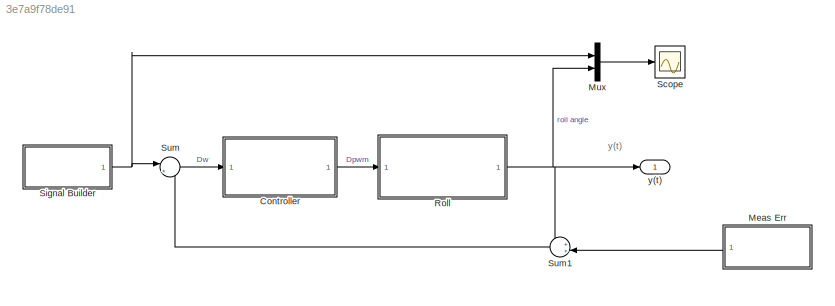
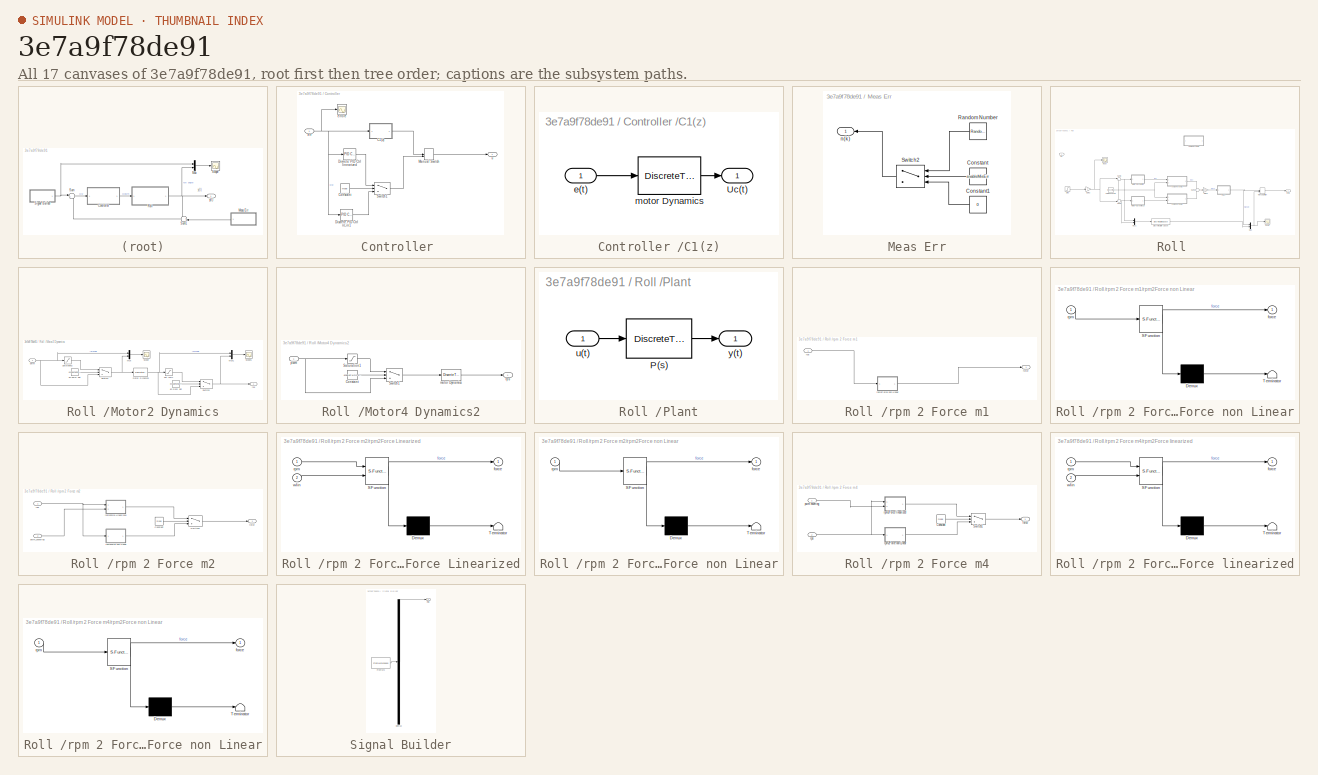
[diagram: thumbnail index - all 17 canvases of the model, root first then tree order]
MODEL slx_3e7a9f78de91
KIND model
CONFIG AbsTol = auto
CONFIG EnableMultiTasking = on
CONFIG FixedStep = 0.021
CONFIG MaxStep = auto
CONFIG MinStep = auto
CONFIG RelTol = 1e-3
CONFIG SampleTimeConstraint = Unconstrained
CONFIG Solver = ode3
CONFIG SolverName = ode3
CONFIG StartTime = 0.0
CONFIG StopTime = 10
BLOCK [SubSystem] Controller 
  Ports = [1, 1]
  RequestExecContextInheritance = off
  Variant = off
BLOCK [SubSystem] Controller /C1(z)
  Ports = [1, 1]
  RequestExecContextInheritance = off
  Variant = off
BLOCK [Outport] Controller /C1(z)/Uc(t)
  IconDisplay = Port number
BLOCK [Inport] Controller /C1(z)/e(t)
  IconDisplay = Port number
BLOCK [DiscreteTransferFcn] Controller /C1(z)/motor Dynamics
  Denominator = [1]
  InputPortMap = u0
  Ports = [1, 1]
  SampleTime = Ts
BLOCK [Constant] Controller /Constant
  Value = mode
BLOCK [Reference] Controller /Discrete PID Ctrl linearized   REF=simulink/Continuous/PID Controller
  Ports = [1, 1]
  SourceBlock = simulink/Continuous/PID Controller
  SourceProductBaseCode = SL
  SourceProductName = Simulink
  SourceType = PID 1dof
BLOCK [Reference] Controller /Discrete PID Ctrl nLin1  REF=simulink/Continuous/PID Controller
  Ports = [1, 1]
  SourceBlock = simulink/Continuous/PID Controller
  SourceProductBaseCode = SL
  SourceProductName = Simulink
  SourceType = PID 1dof
BLOCK [ManualSwitch] Controller /Manual Switch
  CurrentSetting = 0
BLOCK [Switch] Controller /Switch1
  Criteria = u2 > Threshold
  InputSameDT = off
  SaturateOnIntegerOverflow = off
BLOCK [Inport] Controller /err 
  IconDisplay = Port number
BLOCK [Scope] Controller /errore
  NumInputPorts = 1
  Ports = [1]
  ScopeSpecificationString = C++SS(StrPVP('Location','[1567, 635, 2421, 1052]'),StrPVP('Open','off'),MxPVP('AxesTitles',53,'struct(''axes1'',''%<SignalLabel>'')'),MxPVP('ScopeGraphics',56,'struct(''FigureColor'',''[0.5 0.5 0.5]'',''AxesColor'',''[0 0 0]'',''AxesTickColor'',''[1 1 1]'',''LineColors'',''[1 1 0;1 0 1;0 1 1;1 0 0;0 1 0;0 0 1]'',''LineStyles'',''-|-|-|-|-|-'',''LineWidths'',''[0.5 0.5 0.5 0.5 0.5 0.5]'',''MarkerSt...<+339ch>
BLOCK [Outport] Controller /u 
  IconDisplay = Port number
BLOCK [SubSystem] Meas Err
  Ports = [0, 1]
  RequestExecContextInheritance = off
  Variant = off
BLOCK [Constant] Meas Err/Constant
  Value = enableMisErr
BLOCK [Constant] Meas Err/Constant1
  Value = 0
BLOCK [RandomNumber] Meas Err/Random Number
  SampleTime = Ts
  Variance = 0.3
BLOCK [Switch] Meas Err/Switch2
  Criteria = u2 > Threshold
  InputSameDT = off
  SampleTime = Ts
  SaturateOnIntegerOverflow = off
BLOCK [Outport] Meas Err/n(k)
  IconDisplay = Port number
BLOCK [Mux] Mux
  DisplayOption = bar
  Inputs = 2
  Ports = [2, 1]
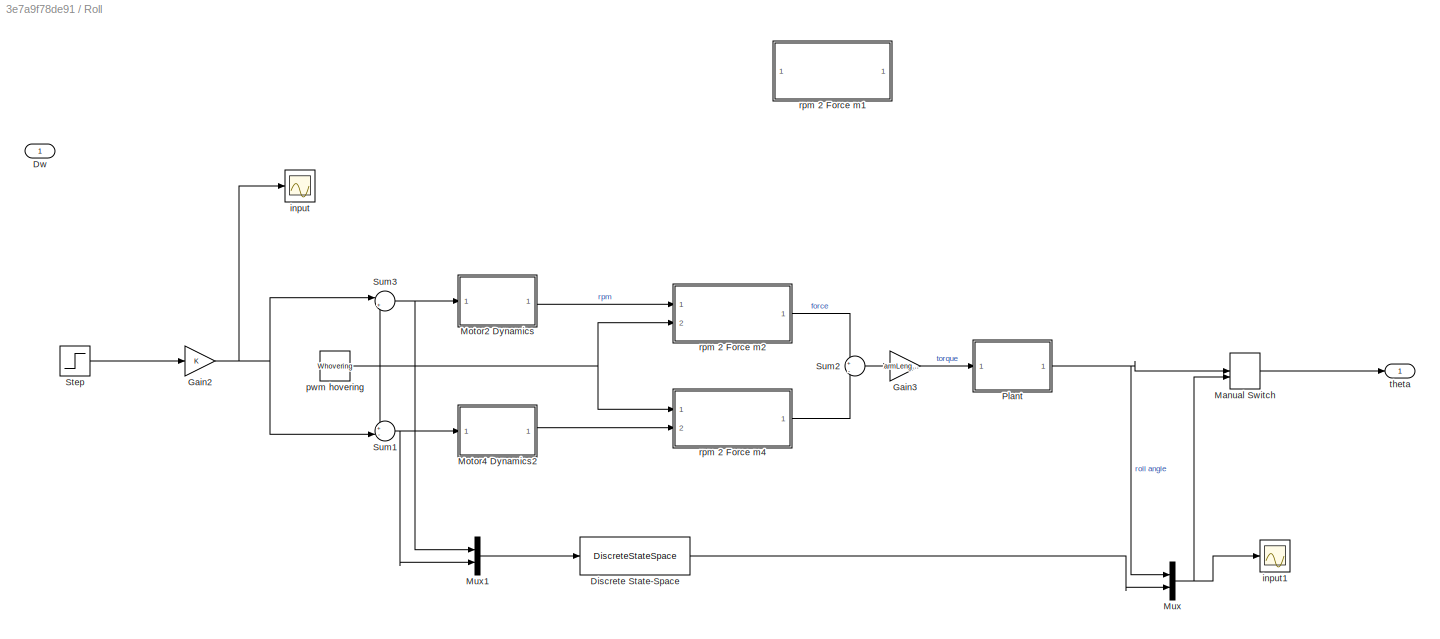
BLOCK [SubSystem] Roll 
  Ports = [1, 1]
  RequestExecContextInheritance = off
  Variant = off
BLOCK [DiscreteStateSpace] Roll /Discrete State-Space
  A = Acomplete
  B = Bcomplete
  C = Ccomplete
  D = Dcomplete
  SampleTime = Ts
BLOCK [Inport] Roll /Dw 
  IconDisplay = Port number
BLOCK [Gain] Roll /Gain2
  OutDataTypeStr = Inherit: Inherit via internal rule
  ParamDataTypeStr = Inherit: Inherit via internal rule
  SampleTime = Ts
  SaturateOnIntegerOverflow = off
BLOCK [Gain] Roll /Gain3
  Gain = armLength
  OutDataTypeStr = Inherit: Inherit via internal rule
  ParamDataTypeStr = Inherit: Inherit via internal rule
  SampleTime = Ts
  SaturateOnIntegerOverflow = off
BLOCK [ManualSwitch] Roll /Manual Switch
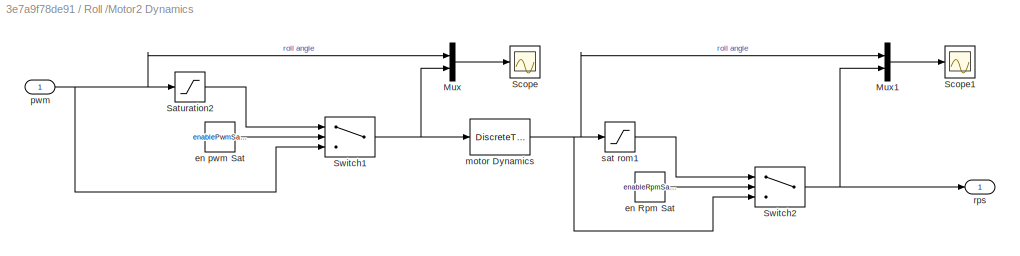
BLOCK [SubSystem] Roll /Motor2 Dynamics
  Ports = [1, 1]
  RequestExecContextInheritance = off
  Variant = off
BLOCK [Mux] Roll /Motor2 Dynamics/Mux
  DisplayOption = bar
  Inputs = 2
  Ports = [2, 1]
BLOCK [Mux] Roll /Motor2 Dynamics/Mux1
  DisplayOption = bar
  Inputs = 2
  Ports = [2, 1]
BLOCK [Saturate] Roll /Motor2 Dynamics/Saturation2
  InputPortMap = u0
  LowerLimit = pwmLowerBound
  Ports = [1, 1]
  SampleTime = Ts
  UpperLimit = pwmUpperBound
BLOCK [Scope] Roll /Motor2 Dynamics/Scope
  NumInputPorts = 1
  Ports = [1]
  ScopeSpecificationString = C++SS(StrPVP('Location','[1806, 178, 2650, 565]'),StrPVP('Open','off'),MxPVP('AxesTitles',53,'struct(''axes1'',''%<SignalLabel>'')'),MxPVP('ScopeGraphics',56,'struct(''FigureColor'',''[0.5 0.5 0.5]'',''AxesColor'',''[0 0 0]'',''AxesTickColor'',''[1 1 1]'',''LineColors'',''[1 1 0;1 0 1;0 1 1;1 0 0;0 1 0;0 0 1]'',''LineStyles'',''-|-|-|-|-|-'',''LineWidths'',''[0.5 0.5 0.5 0.5 0.5 0.5]'',''MarkerSty...<+338ch>
BLOCK [Scope] Roll /Motor2 Dynamics/Scope1
  NumInputPorts = 1
  Ports = [1]
  ScopeSpecificationString = C++SS(StrPVP('Location','[1806, 290, 2650, 677]'),StrPVP('Open','off'),MxPVP('AxesTitles',53,'struct(''axes1'',''%<SignalLabel>'')'),MxPVP('ScopeGraphics',56,'struct(''FigureColor'',''[0.5 0.5 0.5]'',''AxesColor'',''[0 0 0]'',''AxesTickColor'',''[1 1 1]'',''LineColors'',''[1 1 0;1 0 1;0 1 1;1 0 0;0 1 0;0 0 1]'',''LineStyles'',''-|-|-|-|-|-'',''LineWidths'',''[0.5 0.5 0.5 0.5 0.5 0.5]'',''MarkerSty...<+338ch>
BLOCK [Switch] Roll /Motor2 Dynamics/Switch1
  Criteria = u2 > Threshold
  InputSameDT = off
  SampleTime = Ts
  SaturateOnIntegerOverflow = off
BLOCK [Switch] Roll /Motor2 Dynamics/Switch2
  Criteria = u2 > Threshold
  InputSameDT = off
  SampleTime = Ts
  SaturateOnIntegerOverflow = off
BLOCK [Constant] Roll /Motor2 Dynamics/en Rpm Sat
  Value = enableRpmSaturation
BLOCK [Constant] Roll /Motor2 Dynamics/en pwm Sat
  Value = enablePwmSaturation
BLOCK [DiscreteTransferFcn] Roll /Motor2 Dynamics/motor Dynamics
  Denominator = motor_den_tf_discrete
  InputPortMap = u0
  Numerator = motor_num_tf_discrete
  Ports = [1, 1]
  SampleTime = Ts
BLOCK [Inport] Roll /Motor2 Dynamics/pwm
  IconDisplay = Port number
BLOCK [Outport] Roll /Motor2 Dynamics/rps
  IconDisplay = Port number
BLOCK [Saturate] Roll /Motor2 Dynamics/sat rom1
  InputPortMap = u0
  LowerLimit = rpmLowerBound
  Ports = [1, 1]
  SampleTime = Ts
  UpperLimit = rpmUpperBound
BLOCK [SubSystem] Roll /Motor4 Dynamics2
  Ports = [1, 1]
  RequestExecContextInheritance = off
  Variant = off
BLOCK [Constant] Roll /Motor4 Dynamics2/Constant
  SampleTime = Ts
  Value = enablePwmSaturation
BLOCK [Saturate] Roll /Motor4 Dynamics2/Saturation1
  InputPortMap = u0
  LowerLimit = pwmLowerBound
  Ports = [1, 1]
  SampleTime = Ts
  UpperLimit = pwmUpperBound
BLOCK [Switch] Roll /Motor4 Dynamics2/Switch1
  Criteria = u2 > Threshold
  InputSameDT = off
  SampleTime = Ts
  SaturateOnIntegerOverflow = off
BLOCK [DiscreteTransferFcn] Roll /Motor4 Dynamics2/motor Dynamics
  Denominator = motor_den_tf_discrete
  InitialStates = Whovering
  InputPortMap = u0
  Numerator = motor_num_tf_discrete
  Ports = [1, 1]
  SampleTime = Ts
BLOCK [Inport] Roll /Motor4 Dynamics2/pwm
  IconDisplay = Port number
BLOCK [Outport] Roll /Motor4 Dynamics2/rps
  IconDisplay = Port number
BLOCK [Mux] Roll /Mux
  DisplayOption = bar
  Inputs = 2
  Ports = [2, 1]
BLOCK [Mux] Roll /Mux1
  DisplayOption = bar
  Inputs = 2
  Ports = [2, 1]
BLOCK [SubSystem] Roll /Plant
  Ports = [1, 1]
  RequestExecContextInheritance = off
  Variant = off
BLOCK [DiscreteTransferFcn] Roll /Plant/P(s)
  Denominator = roll_den_tf_discrete
  InputPortMap = u0
  Numerator = motor_den_tf_discrete
  Ports = [1, 1]
  SampleTime = Ts
BLOCK [Inport] Roll /Plant/u(t)
  IconDisplay = Port number
BLOCK [Outport] Roll /Plant/y(t)
  IconDisplay = Port number
BLOCK [Step] Roll /Step
  After = 10
  SampleTime = 0
BLOCK [Sum] Roll /Sum1
  IconShape = round
  InputSameDT = off
  Inputs = +-|
  OutDataTypeStr = Inherit: Inherit via internal rule
  Ports = [2, 1]
  SaturateOnIntegerOverflow = off
BLOCK [Sum] Roll /Sum2
  IconShape = round
  InputSameDT = off
  Inputs = +|-
  OutDataTypeStr = Inherit: Inherit via internal rule
  Ports = [2, 1]
  SaturateOnIntegerOverflow = off
BLOCK [Sum] Roll /Sum3
  IconShape = round
  InputSameDT = off
  Inputs = |++
  OutDataTypeStr = Inherit: Inherit via internal rule
  Ports = [2, 1]
  SaturateOnIntegerOverflow = off
BLOCK [Scope] Roll /input
  NumInputPorts = 1
  Ports = [1]
  ScopeSpecificationString = C++SS(StrPVP('Location','[1565, 596, 2409, 983]'),StrPVP('Open','off'),MxPVP('AxesTitles',53,'struct(''axes1'',''%<SignalLabel>'')'),MxPVP('ScopeGraphics',56,'struct(''FigureColor'',''[0.5 0.5 0.5]'',''AxesColor'',''[0 0 0]'',''AxesTickColor'',''[1 1 1]'',''LineColors'',''[1 1 0;1 0 1;0 1 1;1 0 0;0 1 0;0 0 1]'',''LineStyles'',''-|-|-|-|-|-'',''LineWidths'',''[0.5 0.5 0.5 0.5 0.5 0.5]'',''MarkerSty...<+338ch>
BLOCK [Scope] Roll /input1
  NumInputPorts = 1
  Ports = [1]
  ScopeSpecificationString = C++SS(StrPVP('Location','[1565, 695, 2399, 1052]'),StrPVP('Open','off'),MxPVP('AxesTitles',53,'struct(''axes1'',''%<SignalLabel>'')'),MxPVP('ScopeGraphics',56,'struct(''FigureColor'',''[0.5 0.5 0.5]'',''AxesColor'',''[0 0 0]'',''AxesTickColor'',''[1 1 1]'',''LineColors'',''[1 1 0;1 0 1;0 1 1;1 0 0;0 1 0;0 0 1]'',''LineStyles'',''-|-|-|-|-|-'',''LineWidths'',''[0.5 0.5 0.5 0.5 0.5 0.5]'',''MarkerSt...<+349ch>
BLOCK [Constant] Roll /pwm hovering
  Value = Whovering
BLOCK [SubSystem] Roll /rpm 2 Force m1
  Ports = [1, 1]
  RequestExecContextInheritance = off
  Variant = off
BLOCK [Outport] Roll /rpm 2 Force m1/force
  IconDisplay = Port number
BLOCK [SubSystem] Roll /rpm 2 Force m1/rpm2Force non Linear
  ErrorFcn = Stateflow.Translate.translate
  PermitHierarchicalResolution = ExplicitOnly
  Ports = [1, 1]
  RequestExecContextInheritance = off
  SFBlockType = MATLAB Function
  TreatAsAtomicUnit = on
  Variant = off
BLOCK [Demux] Roll /rpm 2 Force m1/rpm2Force non Linear/ Demux 
  Outputs = 1
  Ports = [1, 1]
BLOCK [S-Function] Roll /rpm 2 Force m1/rpm2Force non Linear/ SFunction 
  EnableBusSupport = off
  FunctionName = sf_sfun
  PortCounts = [1 2]
  Ports = [1, 2]
  SFcnIsStateOwnerBlock = off
  SFunctionDeploymentMode = off
  Tag = Stateflow S-Function testRollContSolo 6
BLOCK [Terminator] Roll /rpm 2 Force m1/rpm2Force non Linear/ Terminator 
BLOCK [Outport] Roll /rpm 2 Force m1/rpm2Force non Linear/force
  IconDisplay = Port number
BLOCK [Inport] Roll /rpm 2 Force m1/rpm2Force non Linear/rpm
  IconDisplay = Port number
BLOCK [Inport] Roll /rpm 2 Force m1/rps
  IconDisplay = Port number
BLOCK [SubSystem] Roll /rpm 2 Force m2
  Ports = [2, 1]
  RequestExecContextInheritance = off
  Variant = off
BLOCK [Constant] Roll /rpm 2 Force m2/Constant
  SampleTime = Ts
  Value = mode
BLOCK [Switch] Roll /rpm 2 Force m2/Switch1
  Criteria = u2 > Threshold
  InputSameDT = off
  SaturateOnIntegerOverflow = off
BLOCK [Outport] Roll /rpm 2 Force m2/force
  IconDisplay = Port number
BLOCK [Inport] Roll /rpm 2 Force m2/pwm_hovering
  IconDisplay = Port number
  Port = 2
BLOCK [SubSystem] Roll /rpm 2 Force m2/rpm2Force Linearized
  ErrorFcn = Stateflow.Translate.translate
  PermitHierarchicalResolution = ExplicitOnly
  Ports = [2, 1]
  RequestExecContextInheritance = off
  SFBlockType = MATLAB Function
  TreatAsAtomicUnit = on
  Variant = off
BLOCK [Demux] Roll /rpm 2 Force m2/rpm2Force Linearized/ Demux 
  Outputs = 1
  Ports = [1, 1]
BLOCK [S-Function] Roll /rpm 2 Force m2/rpm2Force Linearized/ SFunction 
  EnableBusSupport = off
  FunctionName = sf_sfun
  PortCounts = [2 2]
  Ports = [2, 2]
  SFcnIsStateOwnerBlock = off
  SFunctionDeploymentMode = off
  Tag = Stateflow S-Function testRollContSolo 5
BLOCK [Terminator] Roll /rpm 2 Force m2/rpm2Force Linearized/ Terminator 
BLOCK [Outport] Roll /rpm 2 Force m2/rpm2Force Linearized/force
  IconDisplay = Port number
BLOCK [Inport] Roll /rpm 2 Force m2/rpm2Force Linearized/rpm
  IconDisplay = Port number
BLOCK [Inport] Roll /rpm 2 Force m2/rpm2Force Linearized/wlin
  IconDisplay = Port number
  Port = 2
BLOCK [SubSystem] Roll /rpm 2 Force m2/rpm2Force non Linear
  ErrorFcn = Stateflow.Translate.translate
  PermitHierarchicalResolution = ExplicitOnly
  Ports = [1, 1]
  RequestExecContextInheritance = off
  SFBlockType = MATLAB Function
  TreatAsAtomicUnit = on
  Variant = off
BLOCK [Demux] Roll /rpm 2 Force m2/rpm2Force non Linear/ Demux 
  Outputs = 1
  Ports = [1, 1]
BLOCK [S-Function] Roll /rpm 2 Force m2/rpm2Force non Linear/ SFunction 
  EnableBusSupport = off
  FunctionName = sf_sfun
  PortCounts = [1 2]
  Ports = [1, 2]
  SFcnIsStateOwnerBlock = off
  SFunctionDeploymentMode = off
  Tag = Stateflow S-Function testRollContSolo 3
BLOCK [Terminator] Roll /rpm 2 Force m2/rpm2Force non Linear/ Terminator 
BLOCK [Outport] Roll /rpm 2 Force m2/rpm2Force non Linear/force
  IconDisplay = Port number
BLOCK [Inport] Roll /rpm 2 Force m2/rpm2Force non Linear/rpm
  IconDisplay = Port number
BLOCK [Inport] Roll /rpm 2 Force m2/rps
  IconDisplay = Port number
BLOCK [SubSystem] Roll /rpm 2 Force m4
  Ports = [2, 1]
  RequestExecContextInheritance = off
  Variant = off
BLOCK [Constant] Roll /rpm 2 Force m4/Constant
  Value = mode
BLOCK [Switch] Roll /rpm 2 Force m4/Switch1
  Criteria = u2 > Threshold
  InputSameDT = off
  SampleTime = Ts
  SaturateOnIntegerOverflow = off
BLOCK [Outport] Roll /rpm 2 Force m4/force
  IconDisplay = Port number
BLOCK [Inport] Roll /rpm 2 Force m4/pwm hovering
  IconDisplay = Port number
BLOCK [SubSystem] Roll /rpm 2 Force m4/rpm2Force linearized
  ErrorFcn = Stateflow.Translate.translate
  PermitHierarchicalResolution = ExplicitOnly
  Ports = [2, 1]
  RequestExecContextInheritance = off
  SFBlockType = MATLAB Function
  TreatAsAtomicUnit = on
  Variant = off
BLOCK [Demux] Roll /rpm 2 Force m4/rpm2Force linearized/ Demux 
  Outputs = 1
  Ports = [1, 1]
BLOCK [S-Function] Roll /rpm 2 Force m4/rpm2Force linearized/ SFunction 
  EnableBusSupport = off
  FunctionName = sf_sfun
  PortCounts = [2 2]
  Ports = [2, 2]
  SFcnIsStateOwnerBlock = off
  SFunctionDeploymentMode = off
  Tag = Stateflow S-Function testRollContSolo 4
BLOCK [Terminator] Roll /rpm 2 Force m4/rpm2Force linearized/ Terminator 
BLOCK [Outport] Roll /rpm 2 Force m4/rpm2Force linearized/force
  IconDisplay = Port number
BLOCK [Inport] Roll /rpm 2 Force m4/rpm2Force linearized/rpm
  IconDisplay = Port number
BLOCK [Inport] Roll /rpm 2 Force m4/rpm2Force linearized/wlin
  IconDisplay = Port number
  Port = 2
BLOCK [SubSystem] Roll /rpm 2 Force m4/rpm2Force non Linear
  ErrorFcn = Stateflow.Translate.translate
  PermitHierarchicalResolution = ExplicitOnly
  Ports = [1, 1]
  RequestExecContextInheritance = off
  SFBlockType = MATLAB Function
  TreatAsAtomicUnit = on
  Variant = off
BLOCK [Demux] Roll /rpm 2 Force m4/rpm2Force non Linear/ Demux 
  Outputs = 1
  Ports = [1, 1]
BLOCK [S-Function] Roll /rpm 2 Force m4/rpm2Force non Linear/ SFunction 
  EnableBusSupport = off
  FunctionName = sf_sfun
  PortCounts = [1 2]
  Ports = [1, 2]
  SFcnIsStateOwnerBlock = off
  SFunctionDeploymentMode = off
  Tag = Stateflow S-Function testRollContSolo 2
BLOCK [Terminator] Roll /rpm 2 Force m4/rpm2Force non Linear/ Terminator 
BLOCK [Outport] Roll /rpm 2 Force m4/rpm2Force non Linear/force
  IconDisplay = Port number
BLOCK [Inport] Roll /rpm 2 Force m4/rpm2Force non Linear/rpm
  IconDisplay = Port number
BLOCK [Inport] Roll /rpm 2 Force m4/rps
  IconDisplay = Port number
  Port = 2
BLOCK [Outport] Roll /theta 
  IconDisplay = Port number
BLOCK [Scope] Scope
  NumInputPorts = 1
  Ports = [1]
  ScopeSpecificationString = C++SS(StrPVP('Location','[1682, 667, 2250, 882]'),StrPVP('Open','off'),MxPVP('AxesTitles',53,'struct(''axes1'',''%<SignalLabel>'')'),MxPVP('ScopeGraphics',56,'struct(''FigureColor'',''[0.5 0.5 0.5]'',''AxesColor'',''[0 0 0]'',''AxesTickColor'',''[1 1 1]'',''LineColors'',''[1 1 0;1 0 1;0 1 1;1 0 0;0 1 0;0 0 1]'',''LineStyles'',''-|-|-|-|-|-'',''LineWidths'',''[0.5 0.5 0.5 0.5 0.5 0.5]'',''MarkerSty...<+306ch>
BLOCK [SubSystem] Signal Builder
  ClipboardFcn = sigbuilder_block('clipboard');
  CloseFcn = sigbuilder_block('close');
  ContinueFcn = sigbuilder_block('continue');
  CopyFcn = sigbuilder_block('copy');
  DeleteFcn = sigbuilder_block('delete');
  LoadFcn = sigbuilder_block('load');
  MaskHideContents = on
  ModelCloseFcn = sigbuilder_block('modelClose');
  NameChangeFcn = sigbuilder_block('namechange');
  OpenFcn = sigbuilder_block('open',[264.8 0 542.4 376 ]);
  PauseFcn = sigbuilder_block('pause');
  Ports = [0, 1]
  PreSaveFcn = sigbuilder_block('preSave');
  RequestExecContextInheritance = off
  StartFcn = sigbuilder_block('start');
  StopFcn = sigbuilder_block('stop');
  Tag = STV Subsys
  Variant = off
BLOCK [Demux] Signal Builder/Demux
  Outputs = 1
  Ports = [1, 1]
  Tag = STV Demux
BLOCK [FromWorkspace] Signal Builder/FromWs
  SampleTime = 0
  Tag = STV FromWs
  VariableName = tuvar
  ZeroCross = on
BLOCK [Outport] Signal Builder/Roll
  IconDisplay = Port number
  Tag = STV Outport
BLOCK [Sum] Sum
  IconShape = round
  InputSameDT = off
  Inputs = |+-
  OutDataTypeStr = Inherit: Inherit via internal rule
  Ports = [2, 1]
  SaturateOnIntegerOverflow = off
BLOCK [Sum] Sum1
  IconShape = round
  InputSameDT = off
  Inputs = ++|
  OutDataTypeStr = Inherit: Inherit via internal rule
  Ports = [2, 1]
  SaturateOnIntegerOverflow = off
BLOCK [Outport] y(t)
  IconDisplay = Port number
ANNOTATION (root): y(t)
LINE Controller /C1(z)/e(t):1 -> Controller /C1(z)/motor Dynamics:1
LINE Controller /C1(z)/motor Dynamics:1 -> Controller /C1(z)/Uc(t):1
LINE Controller /C1(z):1 -> Controller /Manual Switch:1
LINE Controller /Constant:1 -> Controller /Switch1:2
LINE Controller /Discrete PID Ctrl linearized :1 -> Controller /Switch1:1
LINE Controller /Discrete PID Ctrl nLin1:1 -> Controller /Switch1:3
LINE Controller /Manual Switch:1 -> Controller /u :1
LINE Controller /Switch1:1 -> Controller /Manual Switch:2
NET Controller /err :1 -> Controller /C1(z):1, Controller /Discrete PID Ctrl linearized :1, Controller /Discrete PID Ctrl nLin1:1, Controller /errore:1
LINE Controller :1 -> Roll :1
LINE Meas Err/Constant1:1 -> Meas Err/Switch2:3
LINE Meas Err/Constant:1 -> Meas Err/Switch2:2
LINE Meas Err/Random Number:1 -> Meas Err/Switch2:1
LINE Meas Err/Switch2:1 -> Meas Err/n(k):1
LINE Meas Err:1 -> Sum1:2
LINE Mux:1 -> Scope:1
LINE Roll /Discrete State-Space:1 -> Roll /Mux:2
NET Roll /Gain2:1 -> Roll /Sum1:2, Roll /Sum3:1, Roll /input:1
LINE Roll /Gain3:1 -> Roll /Plant:1
LINE Roll /Manual Switch:1 -> Roll /theta :1
LINE Roll /Motor2 Dynamics/Mux1:1 -> Roll /Motor2 Dynamics/Scope1:1
LINE Roll /Motor2 Dynamics/Mux:1 -> Roll /Motor2 Dynamics/Scope:1
LINE Roll /Motor2 Dynamics/Saturation2:1 -> Roll /Motor2 Dynamics/Switch1:1
NET Roll /Motor2 Dynamics/Switch1:1 -> Roll /Motor2 Dynamics/Mux:2, Roll /Motor2 Dynamics/motor Dynamics:1
NET Roll /Motor2 Dynamics/Switch2:1 -> Roll /Motor2 Dynamics/Mux1:2, Roll /Motor2 Dynamics/rps:1
LINE Roll /Motor2 Dynamics/en Rpm Sat:1 -> Roll /Motor2 Dynamics/Switch2:2
LINE Roll /Motor2 Dynamics/en pwm Sat:1 -> Roll /Motor2 Dynamics/Switch1:2
NET Roll /Motor2 Dynamics/motor Dynamics:1 -> Roll /Motor2 Dynamics/Mux1:1, Roll /Motor2 Dynamics/Switch2:3, Roll /Motor2 Dynamics/sat rom1:1
NET Roll /Motor2 Dynamics/pwm:1 -> Roll /Motor2 Dynamics/Mux:1, Roll /Motor2 Dynamics/Saturation2:1, Roll /Motor2 Dynamics/Switch1:3
LINE Roll /Motor2 Dynamics/sat rom1:1 -> Roll /Motor2 Dynamics/Switch2:1
LINE Roll /Motor2 Dynamics:1 -> Roll /rpm 2 Force m2:1
LINE Roll /Motor4 Dynamics2/Constant:1 -> Roll /Motor4 Dynamics2/Switch1:2
LINE Roll /Motor4 Dynamics2/Saturation1:1 -> Roll /Motor4 Dynamics2/Switch1:1
LINE Roll /Motor4 Dynamics2/Switch1:1 -> Roll /Motor4 Dynamics2/motor Dynamics:1
LINE Roll /Motor4 Dynamics2/motor Dynamics:1 -> Roll /Motor4 Dynamics2/rps:1
NET Roll /Motor4 Dynamics2/pwm:1 -> Roll /Motor4 Dynamics2/Saturation1:1, Roll /Motor4 Dynamics2/Switch1:3
LINE Roll /Motor4 Dynamics2:1 -> Roll /rpm 2 Force m4:2
LINE Roll /Mux1:1 -> Roll /Discrete State-Space:1
NET Roll /Mux:1 -> Roll /Manual Switch:2, Roll /input1:1
LINE Roll /Plant/P(s):1 -> Roll /Plant/y(t):1
LINE Roll /Plant/u(t):1 -> Roll /Plant/P(s):1
NET Roll /Plant:1 -> Roll /Manual Switch:1, Roll /Mux:1
LINE Roll /Step:1 -> Roll /Gain2:1
NET Roll /Sum1:1 -> Roll /Motor4 Dynamics2:1, Roll /Mux1:2
LINE Roll /Sum2:1 -> Roll /Gain3:1
NET Roll /Sum3:1 -> Roll /Motor2 Dynamics:1, Roll /Mux1:1
NET Roll /pwm hovering:1 -> Roll /Sum1:1, Roll /Sum3:2, Roll /rpm 2 Force m2:2, Roll /rpm 2 Force m4:1
LINE Roll /rpm 2 Force m1/rpm2Force non Linear:1 -> Roll /rpm 2 Force m1/force:1
LINE Roll /rpm 2 Force m1/rps:1 -> Roll /rpm 2 Force m1/rpm2Force non Linear:1
LINE Roll /rpm 2 Force m2/Constant:1 -> Roll /rpm 2 Force m2/Switch1:2
LINE Roll /rpm 2 Force m2/Switch1:1 -> Roll /rpm 2 Force m2/force:1
LINE Roll /rpm 2 Force m2/pwm_hovering:1 -> Roll /rpm 2 Force m2/rpm2Force Linearized:2
LINE Roll /rpm 2 Force m2/rpm2Force Linearized:1 -> Roll /rpm 2 Force m2/Switch1:1
LINE Roll /rpm 2 Force m2/rpm2Force non Linear:1 -> Roll /rpm 2 Force m2/Switch1:3
NET Roll /rpm 2 Force m2/rps:1 -> Roll /rpm 2 Force m2/rpm2Force Linearized:1, Roll /rpm 2 Force m2/rpm2Force non Linear:1
LINE Roll /rpm 2 Force m2:1 -> Roll /Sum2:1
LINE Roll /rpm 2 Force m4/Constant:1 -> Roll /rpm 2 Force m4/Switch1:2
LINE Roll /rpm 2 Force m4/Switch1:1 -> Roll /rpm 2 Force m4/force:1
LINE Roll /rpm 2 Force m4/pwm hovering:1 -> Roll /rpm 2 Force m4/rpm2Force linearized:2
LINE Roll /rpm 2 Force m4/rpm2Force linearized:1 -> Roll /rpm 2 Force m4/Switch1:1
LINE Roll /rpm 2 Force m4/rpm2Force non Linear:1 -> Roll /rpm 2 Force m4/Switch1:3
NET Roll /rpm 2 Force m4/rps:1 -> Roll /rpm 2 Force m4/rpm2Force linearized:1, Roll /rpm 2 Force m4/rpm2Force non Linear:1
LINE Roll /rpm 2 Force m4:1 -> Roll /Sum2:2
NET Roll :1 -> Mux:2, Sum1:1, y(t):1
NET Signal Builder:1 -> Mux:1, Sum:1
LINE Sum1:1 -> Sum:2
LINE Sum:1 -> Controller :1
note: NET lines group one-source signal fan-out (src -> all destinations, sorted); 1:1 wires keep LINE
CHART Roll
/rpm 2 Force m4/rpm2Force non Linear states=1 transitions=1
  STATE_LABEL 'eML_blk_kernel()'
  STATE_LABEL 'SCRIPT:\nfunction force = fcn(rpm)\n%#codegen\n\n% Computing Thrust force. It is the result of vertical forces acting on all\n% blade elements of one propeller\nRadius = 0.115 % m\nRadius_in = 9 % in\nCt = 0.18\nrho = 1.225 % kg/m^3\nAprop = pi*Radius^2\n\n% Convert to RPM\nThrust_newton = Ct*rho*Aprop*(rpm)^2*Radius^2;\nThrust_kg = Thrust_newton/9.81\n\n\nforce = Thrust_newton;'
CHART Roll
/rpm 2 Force m2/rpm2Force non Linear states=1 transitions=1
  STATE_LABEL 'eML_blk_kernel()'
  STATE_LABEL 'SCRIPT:\nfunction force = fcn(rpm)\n%#codegen\n\n% Computing Thrust force. It is the result of vertical forces acting on all\n% blade elements of one propeller\nRadius = 0.115; % m\nRadius_in = 9; % in\nCt = 0.18;\nrho = 1.225; % kg/m^3\nAprop = pi*Radius^2;\n\n% Convert to RPM\nThrust_newton = Ct*rho*Aprop*(rpm)^2*Radius^2;\nThrust_kg = Thrust_newton/9.81;\n\n\nforce = Thrust_newton;'
CHART Roll
/rpm 2 Force m4/rpm2Force linearized states=1 transitions=1
  STATE_LABEL 'eML_blk_kernel()'
  STATE_LABEL 'SCRIPT:\nfunction force = fcn(rpm,wlin)\n%#codegen\n\n% Computing Thrust force. It is the result of vertical forces acting on all\n% blade elements of one propeller\nRadius = 0.115 % m\nRadius_in = 9 % in\nCt = 0.18\nrho = 1.225 % kg/m^3\nAprop = pi*Radius^2\n\n% Convert to RPM\nThrust_newton = Ct*rho*Aprop*(rpm)*2*wlin*Radius^2;\nThrust_kg = Thrust_newton/9.81\n\n\nforce = Thrust_newton;'
CHART Roll
/rpm 2 Force m2/rpm2Force Linearized states=1 transitions=1
  STATE_LABEL 'eML_blk_kernel()'
  STATE_LABEL 'SCRIPT:\nfunction force = fcn(rpm,wlin)\n%#codegen\n\n% Computing Thrust force. It is the result of vertical forces acting on all\n% blade elements of one propeller\nRadius = 0.115; % m\nRadius_in = 9; % in\nCt = 0.18;\nrho = 1.225; % kg/m^3\nAprop = pi*Radius^2;\n\n% Convert to RPM\nThrust_newton = Ct*rho*Aprop*(rpm)*2*wlin*Radius^2;\nThrust_kg = Thrust_newton/9.81;\n\n\nforce = Thrust_newton;'
CHART Roll
/rpm 2 Force m1/rpm2Force non Linear states=1 transitions=1
  STATE_LABEL 'eML_blk_kernel()'
  STATE_LABEL 'SCRIPT:\nfunction force = fcn(rpm)\n%#codegen\n\n% Computing Thrust force. It is the result of vertical forces acting on all\n% blade elements of one propeller\nRadius = 0.115; % m\nRadius_in = 9; % in\nCt = 0.18;\nrho = 1.225; % kg/m^3\nAprop = pi*Radius^2;\n\n% Convert to RPM\nThrust_newton = Ct*rho*Aprop*(rpm)^2*Radius^2;\nThrust_kg = Thrust_newton/9.81;\n\n\nforce = Thrust_newton;'
